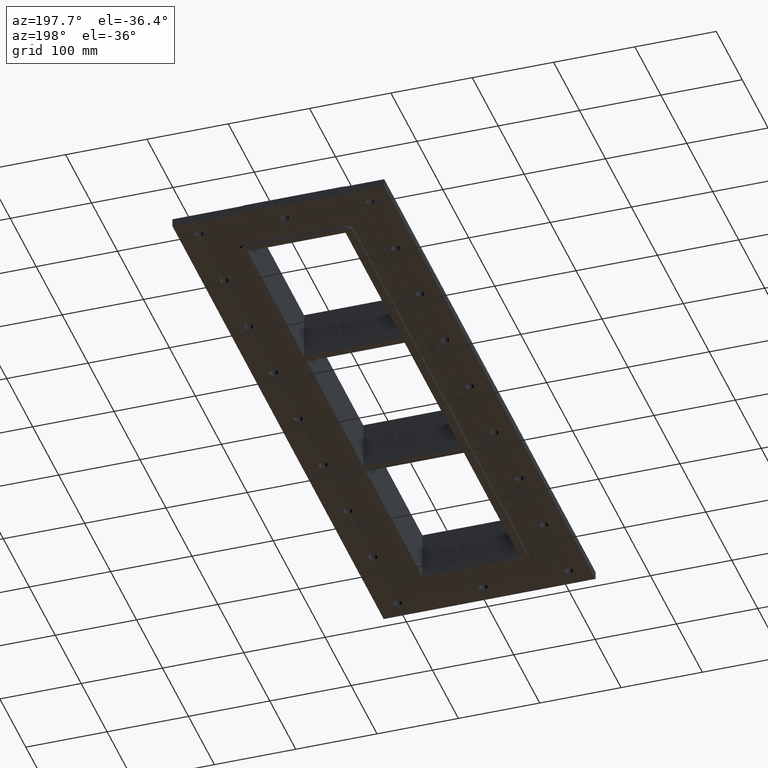
[diagram: clean part render]
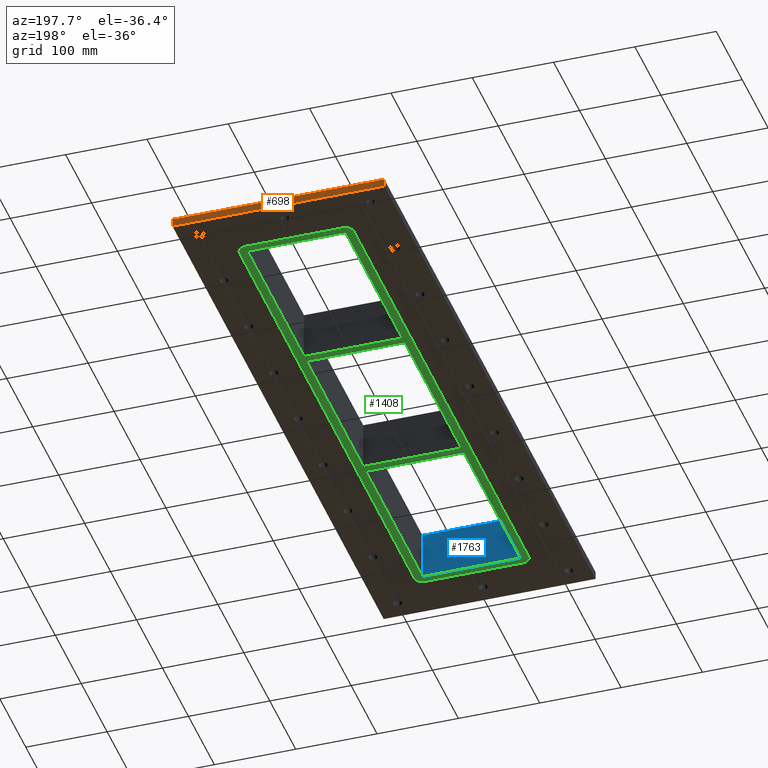
[diagram: same view with three faces highlighted in distinct colors, each labeled with its STEP entity id]
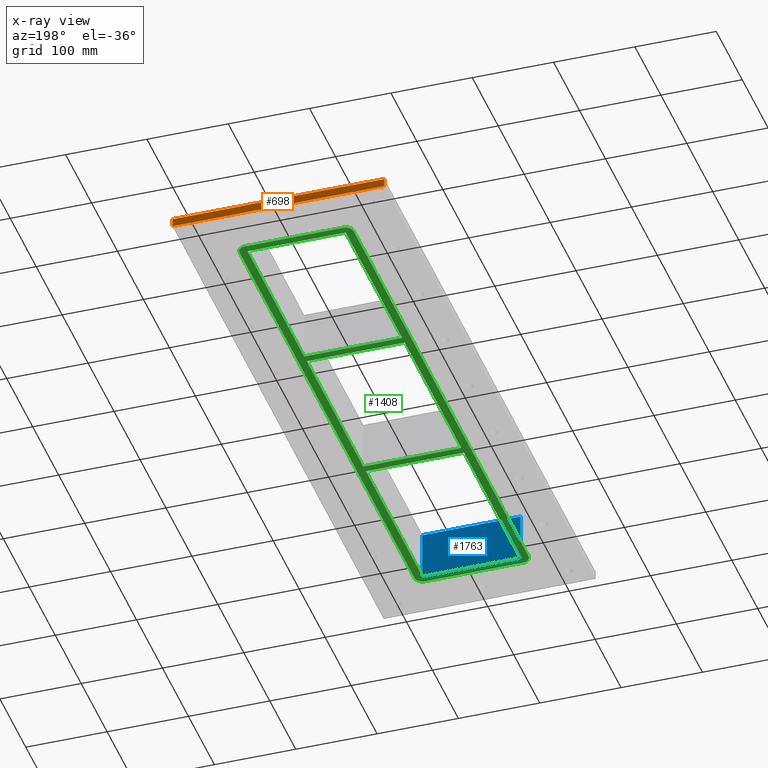
[diagram: x-ray of the same camera — body ghosted, the three highlighted faces saturated]
A machine part, auxiliary view with three faces highlighted in distinct colors.
The next image is the same camera in x-ray (body ghosted, the three faces saturated) — at least one of them is partly hidden behind the body in this view.
Their STEP definitions:

[orange] entity #698 — the highlighted planar face has unit normal (0, 1, 0).
#635=CARTESIAN_POINT('',(-130.25000000000006,407.0,-27.0));
#636=VERTEX_POINT('',#635);
#651=CARTESIAN_POINT('',(-130.25000000000006,407.00000000000011,-17.0));
#652=VERTEX_POINT('',#651);
#659=CARTESIAN_POINT('',(-130.25000000000006,407.0,-27.0));
#660=DIRECTION('',(0.0,0.0,1.0));
#661=VECTOR('',#660,10.0);
#662=LINE('',#659,#661);
#663=EDGE_CURVE('',#636,#652,#662,.T.);
#668=CARTESIAN_POINT('',(130.25,407.00000000000011,-27.0));
#669=DIRECTION('',(0.0,1.0,0.0));
#670=DIRECTION('',(-1.0,0.0,0.0));
#671=AXIS2_PLACEMENT_3D('',#668,#669,#670);
#672=PLANE('',#671);
#673=CARTESIAN_POINT('',(130.25,407.00000000000011,-27.0));
#674=VERTEX_POINT('',#673);
#675=CARTESIAN_POINT('',(-130.25000000000006,407.0,-27.0));
#676=DIRECTION('',(1.0,0.0,0.0));
#677=VECTOR('',#676,260.50000000000006);
#678=LINE('',#675,#677);
#679=EDGE_CURVE('',#636,#674,#678,.T.);
#680=ORIENTED_EDGE('',*,*,#679,.F.);
#681=ORIENTED_EDGE('',*,*,#663,.T.);
#682=CARTESIAN_POINT('',(130.25,407.00000000000011,-17.0));
#683=VERTEX_POINT('',#682);
#684=CARTESIAN_POINT('',(130.25,407.00000000000006,-17.0));
#685=DIRECTION('',(-1.0,0.0,0.0));
#686=VECTOR('',#685,260.50000000000006);
#687=LINE('',#684,#686);
#688=EDGE_CURVE('',#683,#652,#687,.T.);
#689=ORIENTED_EDGE('',*,*,#688,.F.);
#690=CARTESIAN_POINT('',(130.25,407.00000000000011,-27.0));
#691=DIRECTION('',(0.0,0.0,1.0));
#692=VECTOR('',#691,10.0);
#693=LINE('',#690,#692);
#694=EDGE_CURVE('',#674,#683,#693,.T.);
#695=ORIENTED_EDGE('',*,*,#694,.F.);
#696=EDGE_LOOP('',(#680,#681,#689,#695));
#697=FACE_OUTER_BOUND('',#696,.T.);
#698=ADVANCED_FACE('',(#697),#672,.T.);

[blue] entity #1763 — the highlighted planar face has unit normal (0, -1, 0).
#1374=CARTESIAN_POINT('',(60.250000000000057,-336.99999999999994,-30.0));
#1375=VERTEX_POINT('',#1374);
#1392=CARTESIAN_POINT('',(-60.249999999999915,-336.99999999999989,-30.0));
#1393=VERTEX_POINT('',#1392);
#1400=CARTESIAN_POINT('',(-60.249999999999915,-336.99999999999983,-30.0));
#1401=DIRECTION('',(1.0,0.0,0.0));
#1402=VECTOR('',#1401,120.49999999999997);
#1403=LINE('',#1400,#1402);
#1404=EDGE_CURVE('',#1393,#1375,#1403,.T.);
#1723=CARTESIAN_POINT('',(-60.249999999999915,-336.99999999999989,30.0));
#1724=VERTEX_POINT('',#1723);
#1731=CARTESIAN_POINT('',(-60.249999999999915,-336.99999999999989,30.0));
#1732=DIRECTION('',(0.0,0.0,-1.0));
#1733=VECTOR('',#1732,60.0);
#1734=LINE('',#1731,#1733);
#1735=EDGE_CURVE('',#1724,#1393,#1734,.T.);
#1740=CARTESIAN_POINT('',(60.250000000000057,-336.99999999999994,30.0));
#1741=DIRECTION('',(0.0,-1.0,0.0));
#1742=DIRECTION('',(-1.0,0.0,0.0));
#1743=AXIS2_PLACEMENT_3D('',#1740,#1741,#1742);
#1744=PLANE('',#1743);
#1745=ORIENTED_EDGE('',*,*,#1404,.F.);
#1746=ORIENTED_EDGE('',*,*,#1735,.F.);
#1747=CARTESIAN_POINT('',(60.250000000000057,-336.99999999999994,30.0));
#1748=VERTEX_POINT('',#1747);
#1749=CARTESIAN_POINT('',(60.250000000000057,-336.99999999999989,30.0));
#1750=DIRECTION('',(-1.0,0.0,0.0));
#1751=VECTOR('',#1750,120.49999999999997);
#1752=LINE('',#1749,#1751);
#1753=EDGE_CURVE('',#1748,#1724,#1752,.T.);
#1754=ORIENTED_EDGE('',*,*,#1753,.F.);
#1755=CARTESIAN_POINT('',(60.250000000000057,-336.99999999999994,30.0));
#1756=DIRECTION('',(0.0,0.0,-1.0));
#1757=VECTOR('',#1756,60.0);
#1758=LINE('',#1755,#1757);
#1759=EDGE_CURVE('',#1748,#1375,#1758,.T.);
#1760=ORIENTED_EDGE('',*,*,#1759,.T.);
#1761=EDGE_LOOP('',(#1745,#1746,#1754,#1760));
#1762=FACE_OUTER_BOUND('',#1761,.T.);
#1763=ADVANCED_FACE('',(#1762),#1744,.F.);

[green] entity #1408 — the highlighted planar face has unit normal (0, 0, 1).
#1042=CARTESIAN_POINT('',(60.249999999999986,-347.0,-30.0));
#1043=VERTEX_POINT('',#1042);
#1050=CARTESIAN_POINT('',(70.249999999999986,-337.0,-30.0));
#1051=VERTEX_POINT('',#1050);
#1052=CARTESIAN_POINT('',(60.249999999999986,-337.0,-30.0));
#1053=DIRECTION('',(0.0,0.0,1.0));
#1054=DIRECTION('',(0.707106781186547,-0.707106781186547,0.0));
#1055=AXIS2_PLACEMENT_3D('',#1052,#1053,#1054);
#1056=CIRCLE('',#1055,9.999999999999998);
#1057=EDGE_CURVE('',#1043,#1051,#1056,.T.);
#1106=CARTESIAN_POINT('',(-60.249999999999915,-347.0,-30.0));
#1107=VERTEX_POINT('',#1106);
#1114=CARTESIAN_POINT('',(60.249999999999972,-347.0,-30.0));
#1115=DIRECTION('',(-1.0,0.0,0.0));
#1116=VECTOR('',#1115,120.49999999999989);
#1117=LINE('',#1114,#1116);
#1118=EDGE_CURVE('',#1043,#1107,#1117,.T.);
#1154=CARTESIAN_POINT('',(-70.249999999999915,-337.0,-30.0));
#1155=VERTEX_POINT('',#1154);
#1162=CARTESIAN_POINT('',(-60.249999999999915,-337.0,-30.0));
#1163=DIRECTION('',(0.0,0.0,1.0));
#1164=DIRECTION('',(-0.707106781186547,-0.707106781186547,0.0));
#1165=AXIS2_PLACEMENT_3D('',#1162,#1163,#1164);
#1166=CIRCLE('',#1165,9.999999999999998);
#1167=EDGE_CURVE('',#1155,#1107,#1166,.T.);
#1204=CARTESIAN_POINT('',(-70.250000000000128,337.0,-30.0));
#1205=VERTEX_POINT('',#1204);
#1212=CARTESIAN_POINT('',(-70.249999999999915,-337.0,-30.0));
#1213=DIRECTION('',(0.0,1.0,0.0));
#1214=VECTOR('',#1213,674.0);
#1215=LINE('',#1212,#1214);
#1216=EDGE_CURVE('',#1155,#1205,#1215,.T.);
#1252=CARTESIAN_POINT('',(-60.250000000000128,347.0,-30.0));
#1253=VERTEX_POINT('',#1252);
#1260=CARTESIAN_POINT('',(-60.250000000000128,337.0,-30.0));
#1261=DIRECTION('',(0.0,0.0,1.0));
#1262=DIRECTION('',(-0.707106781186547,0.707106781186547,0.0));
#1263=AXIS2_PLACEMENT_3D('',#1260,#1261,#1262);
#1264=CIRCLE('',#1263,9.999999999999998);
#1265=EDGE_CURVE('',#1253,#1205,#1264,.T.);
#1271=CARTESIAN_POINT('',(-3.576129E-014,3.065253E-014,-30.0));
#1272=DIRECTION('',(0.0,0.0,1.0));
#1273=DIRECTION('',(1.0,0.0,0.0));
#1274=AXIS2_PLACEMENT_3D('',#1271,#1272,#1273);
#1275=PLANE('',#1274);
#1276=ORIENTED_EDGE('',*,*,#1057,.F.);
#1277=ORIENTED_EDGE('',*,*,#1118,.T.);
#1278=ORIENTED_EDGE('',*,*,#1167,.F.);
#1279=ORIENTED_EDGE('',*,*,#1216,.T.);
#1280=ORIENTED_EDGE('',*,*,#1265,.F.);
#1281=CARTESIAN_POINT('',(60.249999999999915,347.0,-30.0));
#1282=VERTEX_POINT('',#1281);
#1283=CARTESIAN_POINT('',(-60.250000000000142,347.0,-30.0));
#1284=DIRECTION('',(1.0,0.0,0.0));
#1285=VECTOR('',#1284,120.50000000000006);
#1286=LINE('',#1283,#1285);
#1287=EDGE_CURVE('',#1253,#1282,#1286,.T.);
#1288=ORIENTED_EDGE('',*,*,#1287,.T.);
#1289=CARTESIAN_POINT('',(70.249999999999915,337.0,-30.0));
#1290=VERTEX_POINT('',#1289);
#1291=CARTESIAN_POINT('',(60.249999999999915,337.0,-30.0));
#1292=DIRECTION('',(0.0,0.0,1.0));
#1293=DIRECTION('',(0.707106781186547,0.707106781186547,0.0));
#1294=AXIS2_PLACEMENT_3D('',#1291,#1292,#1293);
#1295=CIRCLE('',#1294,9.999999999999998);
#1296=EDGE_CURVE('',#1290,#1282,#1295,.T.);
#1297=ORIENTED_EDGE('',*,*,#1296,.F.);
#1298=CARTESIAN_POINT('',(70.249999999999915,337.0,-30.0));
#1299=DIRECTION('',(0.0,-1.0,0.0));
#1300=VECTOR('',#1299,674.0);
#1301=LINE('',#1298,#1300);
#1302=EDGE_CURVE('',#1290,#1051,#1301,.T.);
#1303=ORIENTED_EDGE('',*,*,#1302,.T.);
#1304=EDGE_LOOP('',(#1276,#1277,#1278,#1279,#1280,#1288,#1297,#1303));
#1305=FACE_OUTER_BOUND('',#1304,.T.);
#1306=CARTESIAN_POINT('',(-60.250000000000128,337.0,-30.0));
#1307=VERTEX_POINT('',#1306);
#1308=CARTESIAN_POINT('',(-60.250000000000057,119.00000000000013,-30.0));
#1309=VERTEX_POINT('',#1308);
#1310=CARTESIAN_POINT('',(-60.250000000000135,337.0,-30.0));
#1311=DIRECTION('',(0.0,-1.0,0.0));
#1312=VECTOR('',#1311,217.99999999999989);
#1313=LINE('',#1310,#1312);
#1314=EDGE_CURVE('',#1307,#1309,#1313,.T.);
#1315=ORIENTED_EDGE('',*,*,#1314,.T.);
#1316=CARTESIAN_POINT('',(60.249999999999915,119.00000000000006,-30.0));
#1317=VERTEX_POINT('',#1316);
#1318=CARTESIAN_POINT('',(-60.250000000000057,119.00000000000013,-30.0));
#1319=DIRECTION('',(1.0,0.0,0.0));
#1320=VECTOR('',#1319,120.49999999999997);
#1321=LINE('',#1318,#1320);
#1322=EDGE_CURVE('',#1309,#1317,#1321,.T.);
#1323=ORIENTED_EDGE('',*,*,#1322,.T.);
#1324=CARTESIAN_POINT('',(60.249999999999915,337.0,-30.0));
#1325=VERTEX_POINT('',#1324);
#1326=CARTESIAN_POINT('',(60.249999999999915,119.00000000000004,-30.0));
#1327=DIRECTION('',(0.0,1.0,0.0));
#1328=VECTOR('',#1327,217.99999999999994);
#1329=LINE('',#1326,#1328);
#1330=EDGE_CURVE('',#1317,#1325,#1329,.T.);
#1331=ORIENTED_EDGE('',*,*,#1330,.T.);
#1332=CARTESIAN_POINT('',(60.249999999999915,337.0,-30.0));
#1333=DIRECTION('',(-1.0,0.0,0.0));
#1334=VECTOR('',#1333,120.50000000000004);
#1335=LINE('',#1332,#1334);
#1336=EDGE_CURVE('',#1325,#1307,#1335,.T.);
#1337=ORIENTED_EDGE('',*,*,#1336,.T.);
#1338=EDGE_LOOP('',(#1315,#1323,#1331,#1337));
#1339=FACE_BOUND('',#1338,.T.);
#1340=CARTESIAN_POINT('',(-60.250000000000057,109.00000000000006,-30.0));
#1341=VERTEX_POINT('',#1340);
#1342=CARTESIAN_POINT('',(-60.249999999999986,-108.99999999999989,-30.0));
#1343=VERTEX_POINT('',#1342);
#1344=CARTESIAN_POINT('',(-60.250000000000057,109.00000000000004,-30.0));
#1345=DIRECTION('',(0.0,-1.0,0.0));
#1346=VECTOR('',#1345,217.99999999999994);
#1347=LINE('',#1344,#1346);
#1348=EDGE_CURVE('',#1341,#1343,#1347,.T.);
#1349=ORIENTED_EDGE('',*,*,#1348,.T.);
#1350=CARTESIAN_POINT('',(60.249999999999986,-108.99999999999994,-30.0));
#1351=VERTEX_POINT('',#1350);
#1352=CARTESIAN_POINT('',(-60.249999999999986,-108.99999999999987,-30.0));
#1353=DIRECTION('',(1.0,0.0,0.0));
#1354=VECTOR('',#1353,120.49999999999997);
#1355=LINE('',#1352,#1354);
#1356=EDGE_CURVE('',#1343,#1351,#1355,.T.);
#1357=ORIENTED_EDGE('',*,*,#1356,.T.);
#1358=CARTESIAN_POINT('',(60.249999999999986,109.00000000000006,-30.0));
#1359=VERTEX_POINT('',#1358);
#1360=CARTESIAN_POINT('',(60.249999999999986,-108.99999999999996,-30.0));
#1361=DIRECTION('',(0.0,1.0,0.0));
#1362=VECTOR('',#1361,218.0);
#1363=LINE('',#1360,#1362);
#1364=EDGE_CURVE('',#1351,#1359,#1363,.T.);
#1365=ORIENTED_EDGE('',*,*,#1364,.T.);
#1366=CARTESIAN_POINT('',(60.249999999999986,109.00000000000006,-30.0));
#1367=DIRECTION('',(-1.0,0.0,0.0));
#1368=VECTOR('',#1367,120.50000000000004);
#1369=LINE('',#1366,#1368);
#1370=EDGE_CURVE('',#1359,#1341,#1369,.T.);
#1371=ORIENTED_EDGE('',*,*,#1370,.T.);
#1372=EDGE_LOOP('',(#1349,#1357,#1365,#1371));
#1373=FACE_BOUND('',#1372,.T.);
#1374=CARTESIAN_POINT('',(60.250000000000057,-336.99999999999994,-30.0));
#1375=VERTEX_POINT('',#1374);
#1376=CARTESIAN_POINT('',(60.250000000000057,-118.99999999999994,-30.0));
#1377=VERTEX_POINT('',#1376);
#1378=CARTESIAN_POINT('',(60.250000000000057,-336.99999999999994,-30.0));
#1379=DIRECTION('',(0.0,1.0,0.0));
#1380=VECTOR('',#1379,218.0);
#1381=LINE('',#1378,#1380);
#1382=EDGE_CURVE('',#1375,#1377,#1381,.T.);
#1383=ORIENTED_EDGE('',*,*,#1382,.T.);
#1384=CARTESIAN_POINT('',(-60.249999999999986,-118.99999999999994,-30.0));
#1385=VERTEX_POINT('',#1384);
#1386=CARTESIAN_POINT('',(60.250000000000057,-118.99999999999994,-30.0));
#1387=DIRECTION('',(-1.0,0.0,0.0));
#1388=VECTOR('',#1387,120.50000000000004);
#1389=LINE('',#1386,#1388);
#1390=EDGE_CURVE('',#1377,#1385,#1389,.T.);
#1391=ORIENTED_EDGE('',*,*,#1390,.T.);
#1392=CARTESIAN_POINT('',(-60.249999999999915,-336.99999999999989,-30.0));
#1393=VERTEX_POINT('',#1392);
#1394=CARTESIAN_POINT('',(-60.249999999999986,-118.99999999999994,-30.0));
#1395=DIRECTION('',(0.0,-1.0,0.0));
#1396=VECTOR('',#1395,217.99999999999994);
#1397=LINE('',#1394,#1396);
#1398=EDGE_CURVE('',#1385,#1393,#1397,.T.);
#1399=ORIENTED_EDGE('',*,*,#1398,.T.);
#1400=CARTESIAN_POINT('',(-60.249999999999915,-336.99999999999983,-30.0));
#1401=DIRECTION('',(1.0,0.0,0.0));
#1402=VECTOR('',#1401,120.49999999999997);
#1403=LINE('',#1400,#1402);
#1404=EDGE_CURVE('',#1393,#1375,#1403,.T.);
#1405=ORIENTED_EDGE('',*,*,#1404,.T.);
#1406=EDGE_LOOP('',(#1383,#1391,#1399,#1405));
#1407=FACE_BOUND('',#1406,.T.);
#1408=ADVANCED_FACE('',(#1305,#1339,#1373,#1407),#1275,.F.);